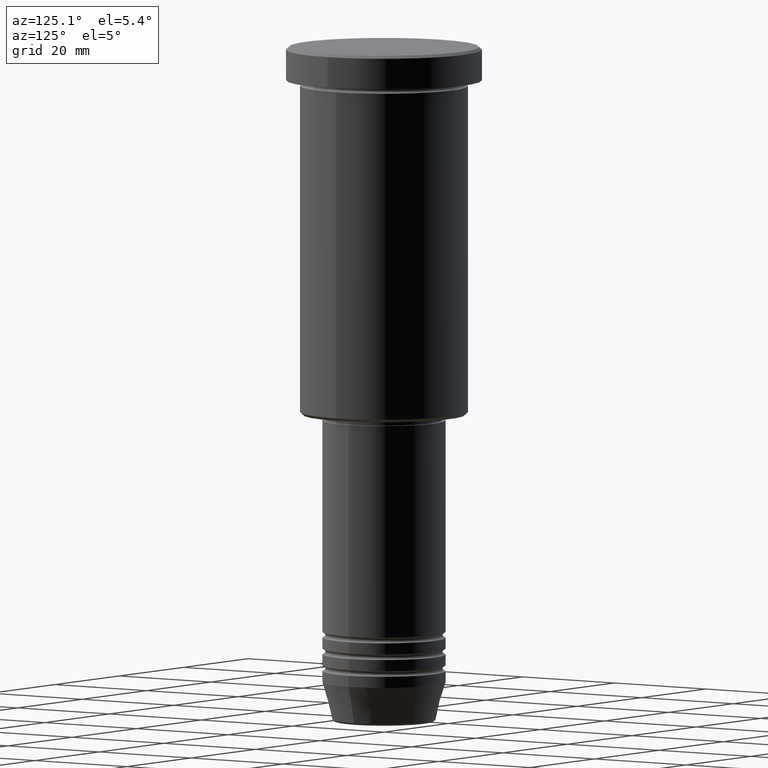
[diagram: clean part render]
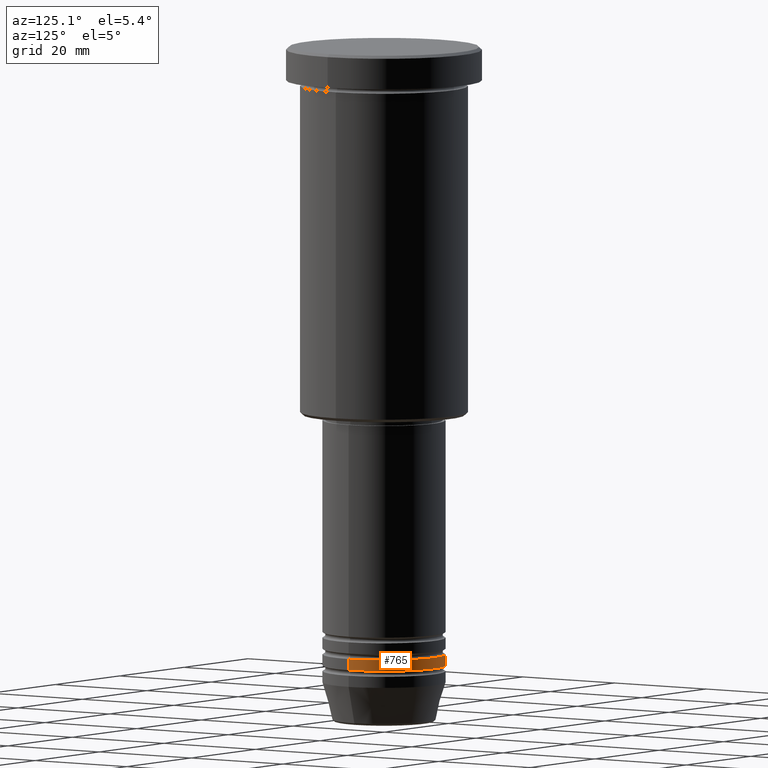
[diagram: same view with one face highlighted and labeled with its STEP entity id]
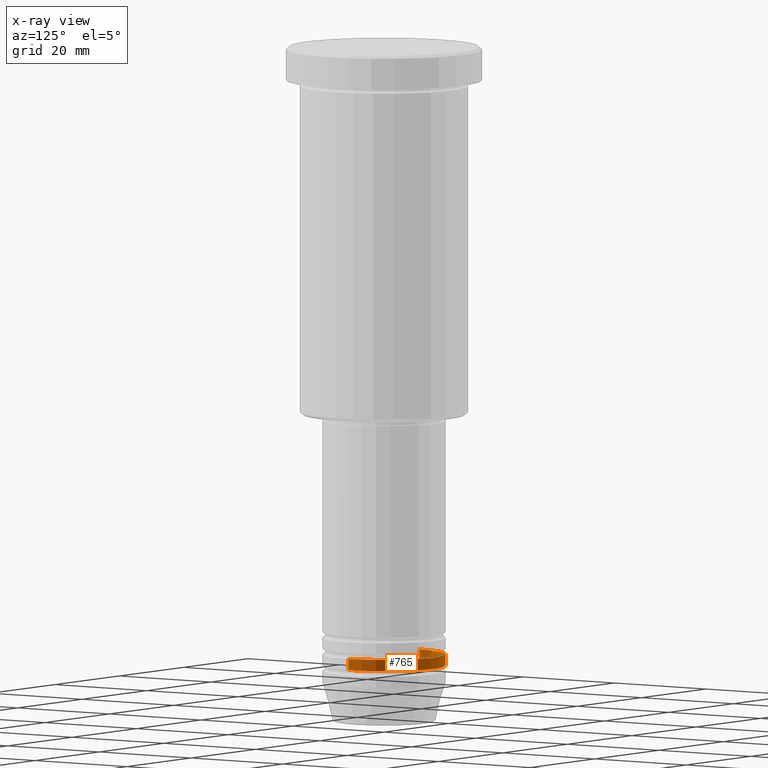
[diagram: x-ray of the same camera — body ghosted, the highlighted face saturated]
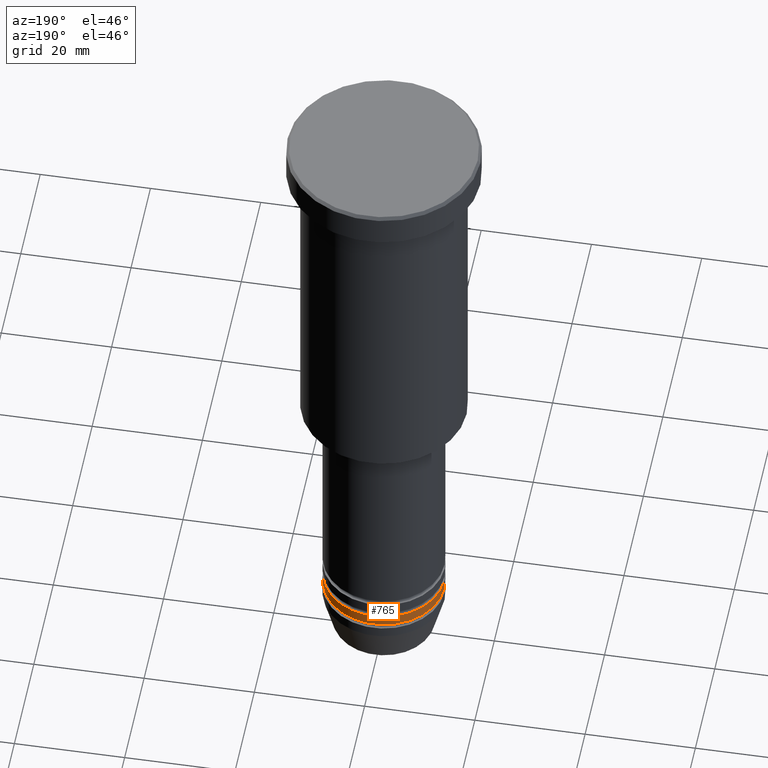
[diagram: same view with one face highlighted and labeled with its STEP entity id]
A machine part, auxiliary view. The second image highlights one B-rep face of the part: STEP entity #765.
The next image is the same camera in x-ray: the body ghosted, the highlighted face saturated — about 8% of this face is hidden behind the body in this view.
A second angle (auxiliary view) of the same face is appended — the face is thin or edge-on in the first view.
In plain terms, the highlighted cylindrical surface (partial cylindrical patch) has radius 11 mm, axis along (-0, -0, 1).
Its self-contained STEP definition (entity closure, byte-faithful):
#67 = ORIENTED_EDGE ( 'NONE', *, *, #467, .F. ) ;
#92 = VECTOR ( 'NONE', #243, 1000.000000000000000 ) ;
#125 = AXIS2_PLACEMENT_3D ( 'NONE', #1092, #1003, #202 ) ;
#189 = DIRECTION ( 'NONE',  ( 1.000000000000000000, 0.000000000000000000, 0.000000000000000000 ) ) ;
#202 = DIRECTION ( 'NONE',  ( 1.000000000000000000, 0.000000000000000000, 0.000000000000000000 ) ) ;
#217 = LINE ( 'NONE', #1128, #496 ) ;
#243 = DIRECTION ( 'NONE',  ( -0.000000000000000000, -0.000000000000000000, 1.000000000000000000 ) ) ;
#257 = ORIENTED_EDGE ( 'NONE', *, *, #1056, .F. ) ;
#332 = CARTESIAN_POINT ( 'NONE',  ( -11.00000000000000000, 1.347111479062088405E-15, 0.000000000000000000 ) ) ;
#343 = CARTESIAN_POINT ( 'NONE',  ( 0.000000000000000000, 0.000000000000000000, 0.000000000000000000 ) ) ;
#344 = CIRCLE ( 'NONE', #125, 11.00000000000000000 ) ;
#362 = CARTESIAN_POINT ( 'NONE',  ( -11.00000000000000000, 1.347111479062088405E-15, -109.0000000000000000 ) ) ;
#412 = VERTEX_POINT ( 'NONE', #919 ) ;
#467 = EDGE_CURVE ( 'NONE', #412, #904, #344, .T. ) ;
#496 = VECTOR ( 'NONE', #1169, 1000.000000000000000 ) ;
#508 = LINE ( 'NONE', #332, #92 ) ;
#555 = CARTESIAN_POINT ( 'NONE',  ( 11.00000000000000000, 0.000000000000000000, -110.9999999999999858 ) ) ;
#613 = AXIS2_PLACEMENT_3D ( 'NONE', #1136, #788, #869 ) ;
#615 = CARTESIAN_POINT ( 'NONE',  ( -11.00000000000000000, 1.347111479062088405E-15, -110.9999999999999858 ) ) ;
#765 = ADVANCED_FACE ( 'NONE', ( #889 ), #1159, .T. ) ;
#788 = DIRECTION ( 'NONE',  ( -0.000000000000000000, -0.000000000000000000, 1.000000000000000000 ) ) ;
#810 = VERTEX_POINT ( 'NONE', #555 ) ;
#869 = DIRECTION ( 'NONE',  ( 1.000000000000000000, 0.000000000000000000, 0.000000000000000000 ) ) ;
#880 = ORIENTED_EDGE ( 'NONE', *, *, #972, .T. ) ;
#889 = FACE_OUTER_BOUND ( 'NONE', #934, .T. ) ;
#902 = ORIENTED_EDGE ( 'NONE', *, *, #935, .T. ) ;
#904 = VERTEX_POINT ( 'NONE', #362 ) ;
#919 = CARTESIAN_POINT ( 'NONE',  ( 11.00000000000000000, 0.000000000000000000, -109.0000000000000000 ) ) ;
#934 = EDGE_LOOP ( 'NONE', ( #902, #880, #67, #257 ) ) ;
#935 = EDGE_CURVE ( 'NONE', #810, #1064, #971, .T. ) ;
#971 = CIRCLE ( 'NONE', #613, 11.00000000000000000 ) ;
#972 = EDGE_CURVE ( 'NONE', #1064, #904, #508, .T. ) ;
#1003 = DIRECTION ( 'NONE',  ( -0.000000000000000000, -0.000000000000000000, 1.000000000000000000 ) ) ;
#1056 = EDGE_CURVE ( 'NONE', #810, #412, #217, .T. ) ;
#1061 = AXIS2_PLACEMENT_3D ( 'NONE', #343, #1113, #189 ) ;
#1064 = VERTEX_POINT ( 'NONE', #615 ) ;
#1092 = CARTESIAN_POINT ( 'NONE',  ( 0.000000000000000000, 0.000000000000000000, -109.0000000000000000 ) ) ;
#1113 = DIRECTION ( 'NONE',  ( -0.000000000000000000, -0.000000000000000000, 1.000000000000000000 ) ) ;
#1128 = CARTESIAN_POINT ( 'NONE',  ( 11.00000000000000000, 0.000000000000000000, 0.000000000000000000 ) ) ;
#1136 = CARTESIAN_POINT ( 'NONE',  ( 0.000000000000000000, 0.000000000000000000, -110.9999999999999858 ) ) ;
#1159 = CYLINDRICAL_SURFACE ( 'NONE', #1061, 11.00000000000000000 ) ;
#1169 = DIRECTION ( 'NONE',  ( -0.000000000000000000, -0.000000000000000000, 1.000000000000000000 ) ) ;